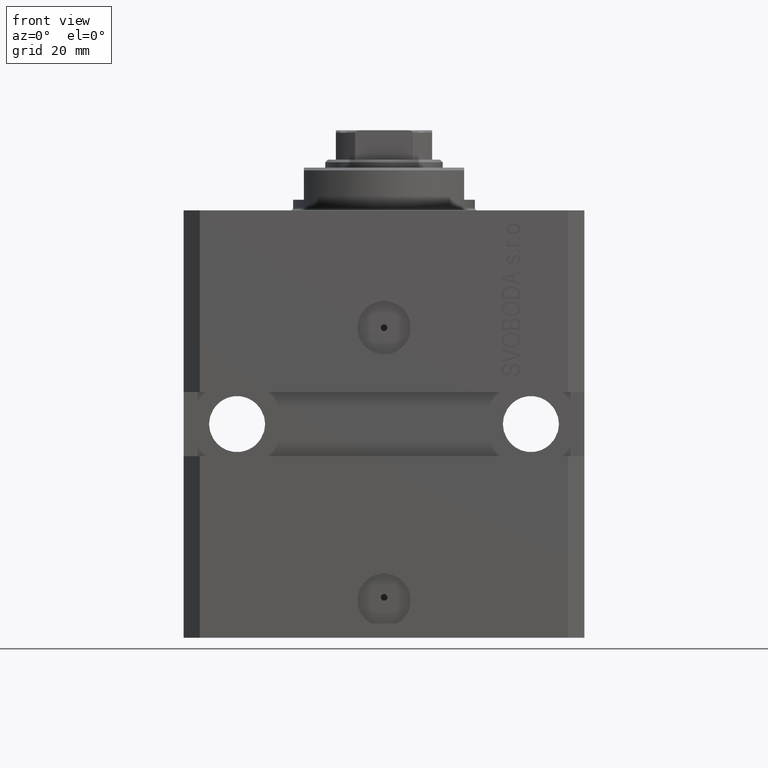
[diagram: clean part render]
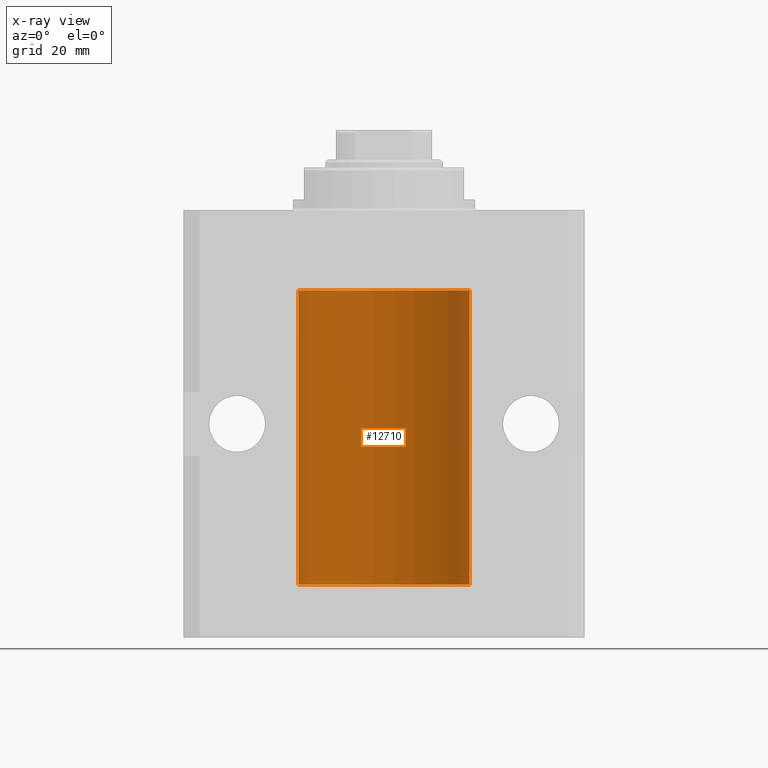
[diagram: x-ray — body ghosted, one internal face saturated and labeled with its STEP entity id]
A machine part, front view, then the same camera in x-ray: the body is ghosted and one INTERNAL B-rep face — a face not visible from any outside direction — is saturated and labeled: STEP entity #12710.
In plain terms, the highlighted cylindrical surface (partial cylindrical patch) has radius 16 mm, axis along (0, 0, 1).
Its self-contained STEP definition (entity closure, byte-faithful):
#212 = VERTEX_POINT ( 'NONE', #14395 ) ;
#217 = CARTESIAN_POINT ( 'NONE',  ( 15.99070366873610993, 0.5574063959866685236, -22.32639436837549951 ) ) ;
#899 = CARTESIAN_POINT ( 'NONE',  ( -16.00000000000000000, 1.959434878635765131E-15, -70.09999999999999432 ) ) ;
#912 = B_SPLINE_CURVE_WITH_KNOTS ( 'NONE', 3,
 ( #10826, #25206, #13702, #21134, #17538, #3155, #29046, #11064, #17776, #47199, #40276, #32165, #46726, #18244 ),
 .UNSPECIFIED., .F., .F.,
 ( 4, 2, 2, 2, 2, 2, 4 ),
 ( 1.597328219370744179E-19, 0.0002442776652680942405, 0.0004885553305361882643, 0.0009771106610723839011, 0.001221388326340481665, 0.001465665991608579430, 0.001954221322144767369 ),
 .UNSPECIFIED. ) ;
#988 = EDGE_CURVE ( 'NONE', #19618, #40143, #912, .T. ) ;
#1036 = CARTESIAN_POINT ( 'NONE',  ( -15.99228023727723702, 0.5003781296993395911, -68.38347829554236057 ) ) ;
#1230 = CARTESIAN_POINT ( 'NONE',  ( -16.00000000000000000, 1.643679961284177128E-16, -21.37499999999999645 ) ) ;
#1392 = CARTESIAN_POINT ( 'NONE',  ( 15.98844460043492077, 0.6087869699336542206, -21.83657454967558564 ) ) ;
#3155 = CARTESIAN_POINT ( 'NONE',  ( -15.99070653155267685, 0.5573233280232986475, -21.67348148680506625 ) ) ;
#3345 = CARTESIAN_POINT ( 'NONE',  ( 16.00000000000000711, 0.08261762387942241104, -22.62499999999997158 ) ) ;
#3692 = ORIENTED_EDGE ( 'NONE', *, *, #40590, .T. ) ;
#3937 = CYLINDRICAL_SURFACE ( 'NONE', #46631, 16.00000000000000000 ) ;
#4038 = EDGE_CURVE ( 'NONE', #31036, #40143, #37623, .T. ) ;
#4054 = CARTESIAN_POINT ( 'NONE',  ( 15.98778830858070954, 0.6250000000079481977, -21.99999999999914735 ) ) ;
#4169 = CARTESIAN_POINT ( 'NONE',  ( -15.99711699979840951, 0.3253759916140645525, -68.55856151623176231 ) ) ;
#4982 = DIRECTION ( 'NONE',  ( 0.000000000000000000, 0.000000000000000000, 1.000000000000000000 ) ) ;
#5023 = CARTESIAN_POINT ( 'NONE',  ( -16.00000000000000000, 1.959434878635765131E-15, -15.00000000000000000 ) ) ;
#5024 = CARTESIAN_POINT ( 'NONE',  ( 16.00000000000000000, -1.835653844722709729E-15, -68.62500000000000000 ) ) ;
#5753 = ORIENTED_EDGE ( 'NONE', *, *, #19991, .F. ) ;
#6762 = CARTESIAN_POINT ( 'NONE',  ( 16.00000000000000000, -1.835653844722709729E-15, -68.62500000000000000 ) ) ;
#7004 = CARTESIAN_POINT ( 'NONE',  ( 16.00000000000001066, 0.08261762387943044628, -68.62500000000000000 ) ) ;
#7012 = EDGE_CURVE ( 'NONE', #15796, #34987, #27893, .T. ) ;
#7019 = ORIENTED_EDGE ( 'NONE', *, *, #37555, .F. ) ;
#7047 = CARTESIAN_POINT ( 'NONE',  ( -16.00000000000000711, 0.08259886010189028405, -67.37500000000001421 ) ) ;
#7824 = VECTOR ( 'NONE', #29478, 1000.000000000000000 ) ;
#8008 = CARTESIAN_POINT ( 'NONE',  ( -16.00000000000013145, 3.685127046438747128E-13, -68.62500000000343903 ) ) ;
#8594 = CARTESIAN_POINT ( 'NONE',  ( 15.99999999999999289, 0.1631343969470015476, -21.37500000000020606 ) ) ;
#8820 = LINE ( 'NONE', #899, #42959 ) ;
#9246 = VECTOR ( 'NONE', #33914, 1000.000000000000000 ) ;
#9465 = ORIENTED_EDGE ( 'NONE', *, *, #988, .T. ) ;
#9547 = ORIENTED_EDGE ( 'NONE', *, *, #4038, .F. ) ;
#10044 = CARTESIAN_POINT ( 'NONE',  ( 15.98778830858070954, 0.6250000000080517815, -67.99999999999916156 ) ) ;
#10165 = VERTEX_POINT ( 'NONE', #5023 ) ;
#10185 = CARTESIAN_POINT ( 'NONE',  ( -15.99070653155268040, 0.5573233280232966491, -67.67348148680505915 ) ) ;
#10287 = CARTESIAN_POINT ( 'NONE',  ( 16.00000000000013145, 3.665532692826917502E-13, -67.37499999999657518 ) ) ;
#10410 = CARTESIAN_POINT ( 'NONE',  ( -16.00000000000013145, 3.685127046438747128E-13, -68.62500000000343903 ) ) ;
#10515 = CARTESIAN_POINT ( 'NONE',  ( 15.99999999999999645, 0.1631343969470158417, -67.37500000000021316 ) ) ;
#10538 = CARTESIAN_POINT ( 'NONE',  ( 15.99707608081894783, 0.3151028052309810534, -22.54594170697727762 ) ) ;
#10826 = CARTESIAN_POINT ( 'NONE',  ( -16.00000000000000000, 1.643679961284177128E-16, -21.37499999999999645 ) ) ;
#11064 = CARTESIAN_POINT ( 'NONE',  ( -15.98778717651346071, 0.6250289588122140971, -22.08131585687052478 ) ) ;
#11355 = CARTESIAN_POINT ( 'NONE',  ( -15.99999999999998934, 0.1631714642025807183, -68.62499999999984368 ) ) ;
#11604 = FACE_OUTER_BOUND ( 'NONE', #12622, .T. ) ;
#12109 = EDGE_CURVE ( 'NONE', #34987, #39784, #45287, .T. ) ;
#12314 = ORIENTED_EDGE ( 'NONE', *, *, #24191, .T. ) ;
#12622 = EDGE_LOOP ( 'NONE', ( #36738, #5753, #39110, #3692, #12314, #23229, #36777, #28846, #31514, #14562, #7019, #9465, #9547, #18667 ) ) ;
#12710 = ADVANCED_FACE ( 'NONE', ( #11604 ), #3937, .F. ) ;
#13702 = CARTESIAN_POINT ( 'NONE',  ( -15.99934216141748244, 0.1636497843296417787, -21.39126528029306229 ) ) ;
#13769 = CARTESIAN_POINT ( 'NONE',  ( -15.99548640841682712, 0.3843705577988820732, -67.50046628527007897 ) ) ;
#14193 = CARTESIAN_POINT ( 'NONE',  ( 15.99548458234361448, 0.3844468804816183471, -68.49947786696357355 ) ) ;
#14395 = CARTESIAN_POINT ( 'NONE',  ( 16.00000000000013145, 3.665532692826917502E-13, -67.37499999999657518 ) ) ;
#14562 = ORIENTED_EDGE ( 'NONE', *, *, #43440, .T. ) ;
#14814 = CARTESIAN_POINT ( 'NONE',  ( 15.98778830858070954, 0.6250000000080517815, -67.99999999999916156 ) ) ;
#14962 = DIRECTION ( 'NONE',  ( -0.000000000000000000, -0.000000000000000000, 1.000000000000000000 ) ) ;
#15552 = CIRCLE ( 'NONE', #43851, 16.00000000000000000 ) ;
#15766 = DIRECTION ( 'NONE',  ( 1.000000000000000000, 0.000000000000000000, 0.000000000000000000 ) ) ;
#15796 = VERTEX_POINT ( 'NONE', #31346 ) ;
#16812 = EDGE_CURVE ( 'NONE', #19789, #39145, #47156, .T. ) ;
#17538 = CARTESIAN_POINT ( 'NONE',  ( -15.99548640841683067, 0.3843705577988847377, -21.50046628527008608 ) ) ;
#17776 = CARTESIAN_POINT ( 'NONE',  ( -15.98844267028591482, 0.6088369347963316081, -22.16324735024328518 ) ) ;
#17792 = CARTESIAN_POINT ( 'NONE',  ( 15.99707608081895138, 0.3151028052310259620, -68.54594170697733091 ) ) ;
#17966 = CARTESIAN_POINT ( 'NONE',  ( 15.99548458234361092, 0.3844468804815581731, -22.49947786696349894 ) ) ;
#18244 = CARTESIAN_POINT ( 'NONE',  ( -16.00000000000013145, 3.685127034031037939E-13, -22.62500000000341771 ) ) ;
#18445 = CARTESIAN_POINT ( 'NONE',  ( 16.00000000000000000, 6.728408811789801767E-16, -22.62500000000000000 ) ) ;
#18582 = LINE ( 'NONE', #19293, #9246 ) ;
#18667 = ORIENTED_EDGE ( 'NONE', *, *, #21624, .T. ) ;
#19293 = CARTESIAN_POINT ( 'NONE',  ( 16.00000000000000000, 0.000000000000000000, -70.09999999999999432 ) ) ;
#19618 = VERTEX_POINT ( 'NONE', #1230 ) ;
#19789 = VERTEX_POINT ( 'NONE', #34780 ) ;
#19991 = EDGE_CURVE ( 'NONE', #45419, #19789, #15552, .T. ) ;
#20328 = CARTESIAN_POINT ( 'NONE',  ( -16.00000000000013145, 3.685127034031037939E-13, -22.62500000000341771 ) ) ;
#20906 = DIRECTION ( 'NONE',  ( -0.000000000000000000, -0.000000000000000000, 1.000000000000000000 ) ) ;
#21134 = CARTESIAN_POINT ( 'NONE',  ( -15.99707730059171240, 0.3150375992092407373, -21.45402333202571654 ) ) ;
#21536 = CARTESIAN_POINT ( 'NONE',  ( 15.99228275317786441, 0.5002975944204781644, -67.61642014570176684 ) ) ;
#21624 = EDGE_CURVE ( 'NONE', #31036, #39145, #39596, .T. ) ;
#23229 = ORIENTED_EDGE ( 'NONE', *, *, #35656, .T. ) ;
#24191 = EDGE_CURVE ( 'NONE', #34418, #212, #36535, .T. ) ;
#24357 = DIRECTION ( 'NONE',  ( 1.000000000000000000, 0.000000000000000000, 0.000000000000000000 ) ) ;
#24992 = CARTESIAN_POINT ( 'NONE',  ( 15.99934183755190986, 0.1636877470527013101, -68.60872690654070993 ) ) ;
#25206 = CARTESIAN_POINT ( 'NONE',  ( -16.00000000000000711, 0.08259886010189904093, -21.37500000000000000 ) ) ;
#25983 = CARTESIAN_POINT ( 'NONE',  ( -15.98778717651346426, 0.6250289588122136530, -68.08131585687053189 ) ) ;
#26230 = DIRECTION ( 'NONE',  ( 1.000000000000000000, 0.000000000000000000, 0.000000000000000000 ) ) ;
#26347 = CARTESIAN_POINT ( 'NONE',  ( 15.98778830858104172, 0.6249999999996183053, -21.91847885046212951 ) ) ;
#26368 = AXIS2_PLACEMENT_3D ( 'NONE', #37795, #4982, #15766 ) ;
#26575 = CARTESIAN_POINT ( 'NONE',  ( 15.99070695999104252, 0.5461439696926363441, -21.68526802364053552 ) ) ;
#26622 = CARTESIAN_POINT ( 'NONE',  ( -16.00000000000000000, 1.959434878635765131E-15, -70.09999999999999432 ) ) ;
#27003 = CARTESIAN_POINT ( 'NONE',  ( 16.00000000000000000, 0.000000000000000000, -70.09999999999999432 ) ) ;
#27325 = CARTESIAN_POINT ( 'NONE',  ( 15.98778830858101685, 0.6250000000002223777, -68.16311639173024162 ) ) ;
#27893 = B_SPLINE_CURVE_WITH_KNOTS ( 'NONE', 3,
 ( #18445, #3345, #33054, #10538, #17966, #217, #44053, #4054 ),
 .UNSPECIFIED., .F., .F.,
 ( 4, 2, 2, 4 ),
 ( 6.538667818360814107E-19, 0.0002443331572174917989, 0.0004886663144349829473, 0.0009773326288699728335 ),
 .UNSPECIFIED. ) ;
#28508 = CARTESIAN_POINT ( 'NONE',  ( 15.98778830858103817, 0.6249999999997223332, -67.91847885046213662 ) ) ;
#28846 = ORIENTED_EDGE ( 'NONE', *, *, #12109, .T. ) ;
#29046 = CARTESIAN_POINT ( 'NONE',  ( -15.98779057735153941, 0.6249419637998100407, -21.83670145863507273 ) ) ;
#29478 = DIRECTION ( 'NONE',  ( -0.000000000000000000, -0.000000000000000000, 1.000000000000000000 ) ) ;
#30696 = B_SPLINE_CURVE_WITH_KNOTS ( 'NONE', 3,
 ( #6762, #7004, #24992, #17792, #14193, #46657, #27325, #10044 ),
 .UNSPECIFIED., .F., .F.,
 ( 4, 2, 2, 4 ),
 ( 1.783888443149829469E-18, 0.0002443331572175257886, 0.0004886663144350497342, 0.0009773326288700682433 ),
 .UNSPECIFIED. ) ;
#31036 = VERTEX_POINT ( 'NONE', #41080 ) ;
#31346 = CARTESIAN_POINT ( 'NONE',  ( 16.00000000000000000, 6.728408811789801767E-16, -22.62500000000000000 ) ) ;
#31514 = ORIENTED_EDGE ( 'NONE', *, *, #39478, .T. ) ;
#31937 = LINE ( 'NONE', #39342, #46839 ) ;
#32165 = CARTESIAN_POINT ( 'NONE',  ( -15.99711699979842017, 0.3253759916140657737, -22.55856151623175521 ) ) ;
#32479 = CIRCLE ( 'NONE', #26368, 16.00000000000000000 ) ;
#33054 = CARTESIAN_POINT ( 'NONE',  ( 15.99934183755190986, 0.1636877470526783007, -22.60872690654068151 ) ) ;
#33520 = VECTOR ( 'NONE', #41207, 1000.000000000000000 ) ;
#33887 = CARTESIAN_POINT ( 'NONE',  ( 0.000000000000000000, 0.000000000000000000, -70.09999999999999432 ) ) ;
#33914 = DIRECTION ( 'NONE',  ( -0.000000000000000000, -0.000000000000000000, 1.000000000000000000 ) ) ;
#34005 = CARTESIAN_POINT ( 'NONE',  ( 16.00000000000013145, 3.665532684555111376E-13, -21.37499999999658229 ) ) ;
#34152 = CARTESIAN_POINT ( 'NONE',  ( 15.98778830858070954, 0.6250000000080517815, -67.99999999999916156 ) ) ;
#34418 = VERTEX_POINT ( 'NONE', #34152 ) ;
#34532 = CARTESIAN_POINT ( 'NONE',  ( 16.00000000000013145, 3.665532684555111376E-13, -21.37499999999658229 ) ) ;
#34780 = CARTESIAN_POINT ( 'NONE',  ( -16.00000000000000000, 1.959434878635765131E-15, -70.09999999999999432 ) ) ;
#34987 = VERTEX_POINT ( 'NONE', #36948 ) ;
#35656 = EDGE_CURVE ( 'NONE', #212, #15796, #18582, .T. ) ;
#36501 = CARTESIAN_POINT ( 'NONE',  ( -15.98844267028591126, 0.6088369347963314970, -68.16324735024328163 ) ) ;
#36535 = B_SPLINE_CURVE_WITH_KNOTS ( 'NONE', 3,
 ( #14814, #28508, #43319, #43088, #21536, #43554, #10515, #10287 ),
 .UNSPECIFIED., .F., .F.,
 ( 4, 2, 2, 4 ),
 ( 0.0009773326288700682433, 0.001221554802188685399, 0.001465776975507302772, 0.001954221322144537518 ),
 .UNSPECIFIED. ) ;
#36738 = ORIENTED_EDGE ( 'NONE', *, *, #16812, .F. ) ;
#36777 = ORIENTED_EDGE ( 'NONE', *, *, #7012, .T. ) ;
#36948 = CARTESIAN_POINT ( 'NONE',  ( 15.98778830858070954, 0.6250000000079481977, -21.99999999999914735 ) ) ;
#37555 = EDGE_CURVE ( 'NONE', #19618, #10165, #8820, .T. ) ;
#37575 = CARTESIAN_POINT ( 'NONE',  ( 15.99711856062700122, 0.3252985083513915687, -21.44140297987714661 ) ) ;
#37623 = LINE ( 'NONE', #26622, #33520 ) ;
#37795 = CARTESIAN_POINT ( 'NONE',  ( 0.000000000000000000, 0.000000000000000000, -15.00000000000000000 ) ) ;
#38017 = CARTESIAN_POINT ( 'NONE',  ( 16.00000000000000000, 0.000000000000000000, -15.00000000000000000 ) ) ;
#38628 = DIRECTION ( 'NONE',  ( -0.000000000000000000, -0.000000000000000000, 1.000000000000000000 ) ) ;
#39110 = ORIENTED_EDGE ( 'NONE', *, *, #44697, .T. ) ;
#39145 = VERTEX_POINT ( 'NONE', #10410 ) ;
#39342 = CARTESIAN_POINT ( 'NONE',  ( 16.00000000000000000, 0.000000000000000000, -70.09999999999999432 ) ) ;
#39372 = VECTOR ( 'NONE', #38628, 1000.000000000000000 ) ;
#39478 = EDGE_CURVE ( 'NONE', #39784, #42401, #31937, .T. ) ;
#39596 = B_SPLINE_CURVE_WITH_KNOTS ( 'NONE', 3,
 ( #39863, #7047, #42987, #46553, #13769, #10185, #40813, #25983, #36501, #40572, #1036, #4169, #11355, #8008 ),
 .UNSPECIFIED., .F., .F.,
 ( 4, 2, 2, 2, 2, 2, 4 ),
 ( 9.902737362640428303E-19, 0.0002442776652680895785, 0.0004885553305361781812, 0.0009771106610723552782, 0.001221388326340464752, 0.001465665991608574008, 0.001954221322144763465 ),
 .UNSPECIFIED. ) ;
#39761 = CARTESIAN_POINT ( 'NONE',  ( -16.00000000000000000, 1.959434878635765131E-15, -70.09999999999999432 ) ) ;
#39784 = VERTEX_POINT ( 'NONE', #34532 ) ;
#39863 = CARTESIAN_POINT ( 'NONE',  ( -16.00000000000000000, -9.346608026143465119E-15, -67.37500000000000000 ) ) ;
#39888 = DIRECTION ( 'NONE',  ( 0.000000000000000000, 0.000000000000000000, 1.000000000000000000 ) ) ;
#40143 = VERTEX_POINT ( 'NONE', #20328 ) ;
#40276 = CARTESIAN_POINT ( 'NONE',  ( -15.99228023727724413, 0.5003781296993413674, -22.38347829554236057 ) ) ;
#40572 = CARTESIAN_POINT ( 'NONE',  ( -15.99070426498502862, 0.5462220647145645813, -68.31460064614141459 ) ) ;
#40590 = EDGE_CURVE ( 'NONE', #42126, #34418, #30696, .T. ) ;
#40813 = CARTESIAN_POINT ( 'NONE',  ( -15.98779057735153586, 0.6249419637998054888, -67.83670145863507628 ) ) ;
#40935 = CARTESIAN_POINT ( 'NONE',  ( 15.99228275317787507, 0.5002975944204000047, -21.61642014570181303 ) ) ;
#41080 = CARTESIAN_POINT ( 'NONE',  ( -16.00000000000000000, -9.346608026143465119E-15, -67.37500000000000000 ) ) ;
#41207 = DIRECTION ( 'NONE',  ( -0.000000000000000000, -0.000000000000000000, 1.000000000000000000 ) ) ;
#41979 = CARTESIAN_POINT ( 'NONE',  ( 16.00000000000000000, 0.000000000000000000, -70.09999999999999432 ) ) ;
#42126 = VERTEX_POINT ( 'NONE', #5024 ) ;
#42401 = VERTEX_POINT ( 'NONE', #38017 ) ;
#42959 = VECTOR ( 'NONE', #44735, 1000.000000000000000 ) ;
#42987 = CARTESIAN_POINT ( 'NONE',  ( -15.99934216141748244, 0.1636497843296345067, -67.39126528029308361 ) ) ;
#43088 = CARTESIAN_POINT ( 'NONE',  ( 15.99070695999103542, 0.5461439696927204990, -67.68526802364047512 ) ) ;
#43319 = CARTESIAN_POINT ( 'NONE',  ( 15.98844460043491367, 0.6087869699337551399, -67.83657454967556077 ) ) ;
#43440 = EDGE_CURVE ( 'NONE', #42401, #10165, #32479, .T. ) ;
#43554 = CARTESIAN_POINT ( 'NONE',  ( 15.99711856062700477, 0.3252985083514284281, -67.44140297987711108 ) ) ;
#43851 = AXIS2_PLACEMENT_3D ( 'NONE', #46579, #39888, #24357 ) ;
#44053 = CARTESIAN_POINT ( 'NONE',  ( 15.98778830858101685, 0.6250000000001204592, -22.16311639173018833 ) ) ;
#44517 = CARTESIAN_POINT ( 'NONE',  ( 15.98778830858070954, 0.6250000000079481977, -21.99999999999914735 ) ) ;
#44697 = EDGE_CURVE ( 'NONE', #45419, #42126, #45788, .T. ) ;
#44735 = DIRECTION ( 'NONE',  ( -0.000000000000000000, -0.000000000000000000, 1.000000000000000000 ) ) ;
#45287 = B_SPLINE_CURVE_WITH_KNOTS ( 'NONE', 3,
 ( #44517, #26347, #1392, #26575, #40935, #37575, #8594, #34005 ),
 .UNSPECIFIED., .F., .F.,
 ( 4, 2, 2, 4 ),
 ( 0.0009773326288699728335, 0.001221554802188567438, 0.001465776975507162259, 0.001954221322144344530 ),
 .UNSPECIFIED. ) ;
#45419 = VERTEX_POINT ( 'NONE', #27003 ) ;
#45788 = LINE ( 'NONE', #41979, #39372 ) ;
#46553 = CARTESIAN_POINT ( 'NONE',  ( -15.99707730059171240, 0.3150375992092334654, -67.45402333202571299 ) ) ;
#46579 = CARTESIAN_POINT ( 'NONE',  ( 0.000000000000000000, 0.000000000000000000, -70.09999999999999432 ) ) ;
#46631 = AXIS2_PLACEMENT_3D ( 'NONE', #33887, #14962, #26230 ) ;
#46657 = CARTESIAN_POINT ( 'NONE',  ( 15.99070366873610283, 0.5574063959867601170, -68.32639436837555991 ) ) ;
#46726 = CARTESIAN_POINT ( 'NONE',  ( -16.00000000000000000, 0.1631714642025800244, -22.62499999999985789 ) ) ;
#46839 = VECTOR ( 'NONE', #20906, 1000.000000000000000 ) ;
#47156 = LINE ( 'NONE', #39761, #7824 ) ;
#47199 = CARTESIAN_POINT ( 'NONE',  ( -15.99070426498503217, 0.5462220647145618058, -22.31460064614143590 ) ) ;